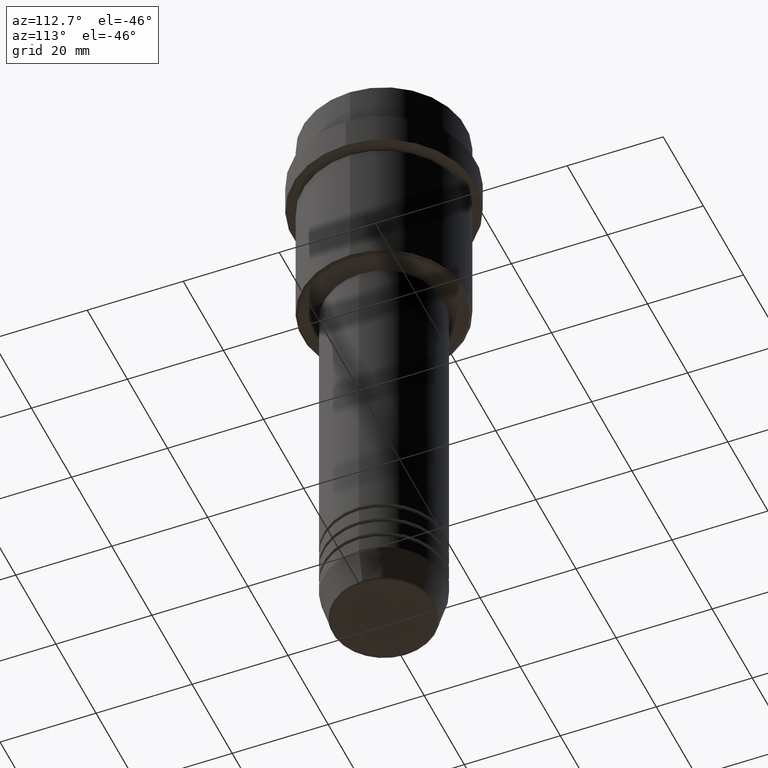
[diagram: clean part render]
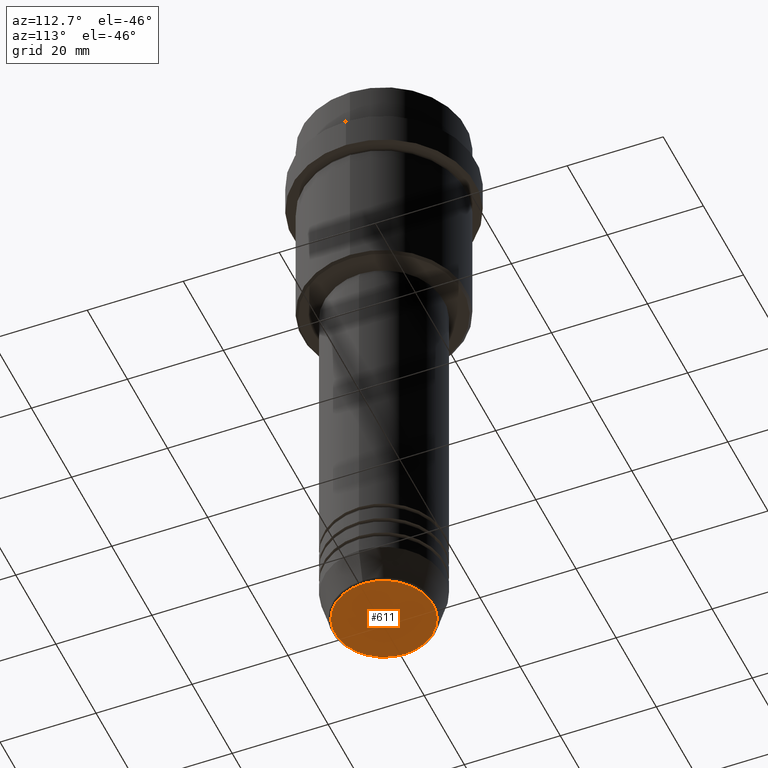
[diagram: same view with one face highlighted and labeled with its STEP entity id]
A machine part, auxiliary view. The second image highlights one B-rep face of the part: STEP entity #611.
In plain terms, the highlighted planar face has unit normal (0, -0, 1).
Its self-contained STEP definition (entity closure, byte-faithful):
#4 = DIRECTION ( 'NONE',  ( 0.000000000000000000, 0.000000000000000000, -1.000000000000000000 ) ) ;
#16 = AXIS2_PLACEMENT_3D ( 'NONE', #1072, #4, #757 ) ;
#143 = CARTESIAN_POINT ( 'NONE',  ( 10.24069215899265473, 0.000000000000000000, -130.0000000000000000 ) ) ;
#196 = EDGE_CURVE ( 'NONE', #376, #898, #864, .T. ) ;
#201 = AXIS2_PLACEMENT_3D ( 'NONE', #307, #959, #1197 ) ;
#203 = CARTESIAN_POINT ( 'NONE',  ( 0.000000000000000000, 0.000000000000000000, -130.0000000000000000 ) ) ;
#227 = PLANE ( 'NONE',  #201 ) ;
#302 = ORIENTED_EDGE ( 'NONE', *, *, #712, .T. ) ;
#307 = CARTESIAN_POINT ( 'NONE',  ( 0.000000000000000000, 0.000000000000000000, -130.0000000000000000 ) ) ;
#368 = AXIS2_PLACEMENT_3D ( 'NONE', #203, #1098, #432 ) ;
#376 = VERTEX_POINT ( 'NONE', #1131 ) ;
#432 = DIRECTION ( 'NONE',  ( 1.000000000000000000, 0.000000000000000000, 0.000000000000000000 ) ) ;
#458 = EDGE_LOOP ( 'NONE', ( #302, #581 ) ) ;
#504 = CIRCLE ( 'NONE', #16, 10.24069215899265473 ) ;
#581 = ORIENTED_EDGE ( 'NONE', *, *, #196, .T. ) ;
#611 = ADVANCED_FACE ( 'NONE', ( #1190 ), #227, .F. ) ;
#712 = EDGE_CURVE ( 'NONE', #898, #376, #504, .T. ) ;
#757 = DIRECTION ( 'NONE',  ( 1.000000000000000000, 0.000000000000000000, 0.000000000000000000 ) ) ;
#864 = CIRCLE ( 'NONE', #368, 10.24069215899265473 ) ;
#898 = VERTEX_POINT ( 'NONE', #143 ) ;
#959 = DIRECTION ( 'NONE',  ( 0.000000000000000000, -0.000000000000000000, 1.000000000000000000 ) ) ;
#1072 = CARTESIAN_POINT ( 'NONE',  ( 0.000000000000000000, 0.000000000000000000, -130.0000000000000000 ) ) ;
#1098 = DIRECTION ( 'NONE',  ( 0.000000000000000000, 0.000000000000000000, -1.000000000000000000 ) ) ;
#1131 = CARTESIAN_POINT ( 'NONE',  ( -10.24069215899265473, 1.283696036640841784E-15, -130.0000000000000000 ) ) ;
#1190 = FACE_OUTER_BOUND ( 'NONE', #458, .T. ) ;
#1197 = DIRECTION ( 'NONE',  ( 1.000000000000000000, 0.000000000000000000, 0.000000000000000000 ) ) ;